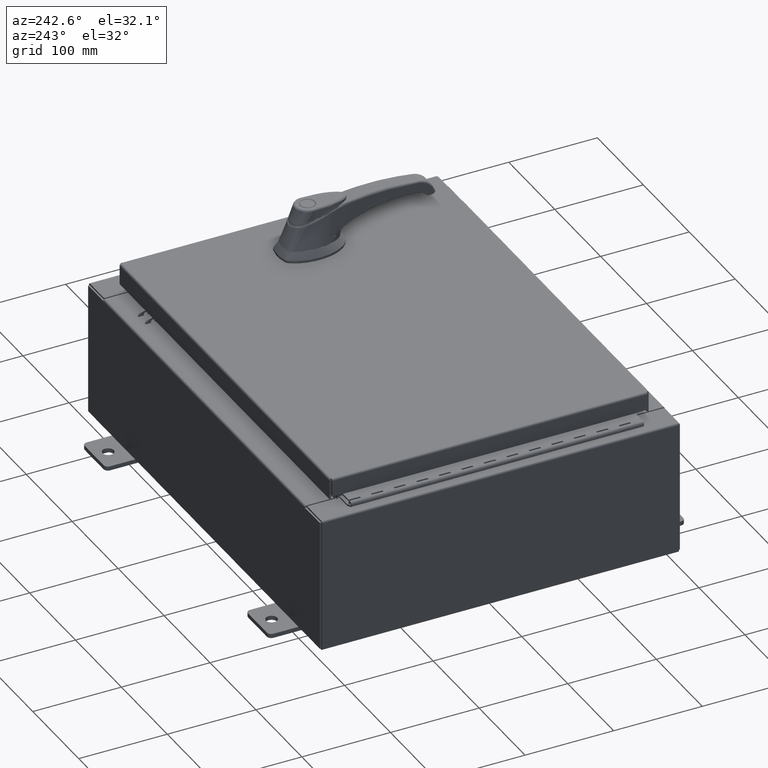
[diagram: clean part render]
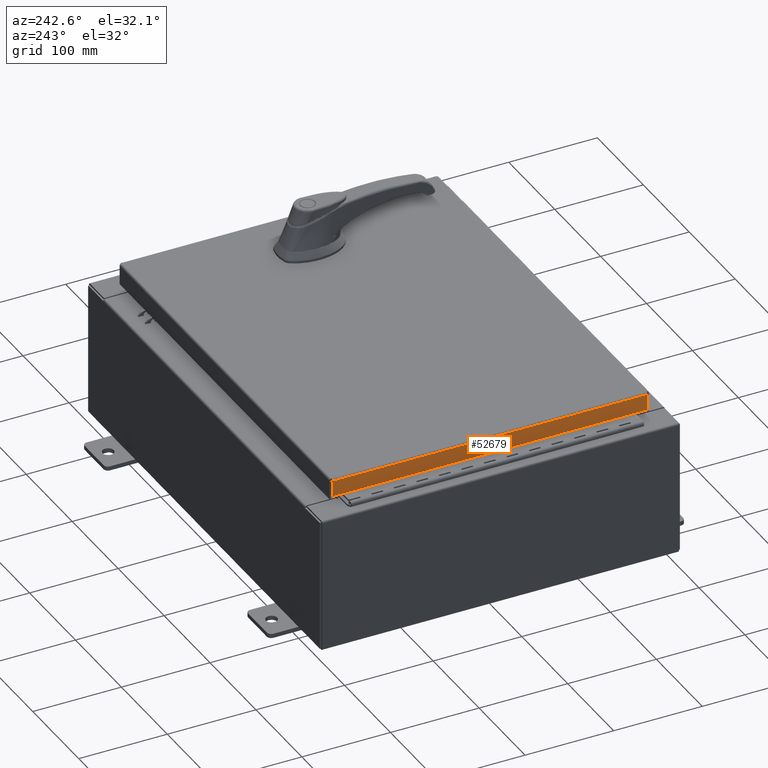
[diagram: same view with one face highlighted and labeled with its STEP entity id]
A machine part, auxiliary view. The second image highlights one B-rep face of the part: STEP entity #52679.
In plain terms, the highlighted planar face has unit normal (1, 0, -0).
Its self-contained STEP definition (entity closure, byte-faithful):
#39 = VERTEX_POINT ( 'NONE', #68498 ) ;
#737 = LINE ( 'NONE', #34136, #85139 ) ;
#4767 = VERTEX_POINT ( 'NONE', #39766 ) ;
#6391 = EDGE_CURVE ( 'NONE', #34725, #28637, #31028, .T. ) ;
#6684 = VECTOR ( 'NONE', #74131, 39.37007874015748100 ) ;
#13155 = CARTESIAN_POINT ( 'NONE',  ( -9.078000000000001200, -7.093999999999999400, -0.7949999999999997100 ) ) ;
#16481 = VECTOR ( 'NONE', #53992, 39.37007874015748100 ) ;
#20382 = ORIENTED_EDGE ( 'NONE', *, *, #6391, .T. ) ;
#23723 = EDGE_CURVE ( 'NONE', #39, #28637, #60026, .T. ) ;
#24617 = PLANE ( 'NONE',  #75813 ) ;
#25104 = CARTESIAN_POINT ( 'NONE',  ( -9.077999999999999400, 7.005157864376270600, 7.672133310220841000E-014 ) ) ;
#27525 = CARTESIAN_POINT ( 'NONE',  ( -9.078000000000001200, 7.005157864376276000, -0.7949999999999979300 ) ) ;
#28637 = VERTEX_POINT ( 'NONE', #27525 ) ;
#29424 = EDGE_CURVE ( 'NONE', #4767, #39, #32503, .T. ) ;
#31028 = LINE ( 'NONE', #25104, #6684 ) ;
#32503 = LINE ( 'NONE', #73982, #95246 ) ;
#32856 = DIRECTION ( 'NONE',  ( 1.000000000000000000, 7.701855070945239800E-017, -3.034122441942816500E-015 ) ) ;
#34136 = CARTESIAN_POINT ( 'NONE',  ( -9.077999999999999400, -7.093999999999999400, -0.08770000000000004200 ) ) ;
#34725 = VERTEX_POINT ( 'NONE', #46354 ) ;
#35338 = DIRECTION ( 'NONE',  ( -3.034122441942816500E-015, 6.982962677686265900E-015, -1.000000000000000000 ) ) ;
#39525 = EDGE_CURVE ( 'NONE', #34725, #4767, #737, .T. ) ;
#39766 = CARTESIAN_POINT ( 'NONE',  ( -9.077999999999999400, -7.005157864376266200, -0.08770000000000061100 ) ) ;
#42021 = ORIENTED_EDGE ( 'NONE', *, *, #23723, .F. ) ;
#46354 = CARTESIAN_POINT ( 'NONE',  ( -9.077999999999999400, 7.005157864376271500, -0.08770000000000113800 ) ) ;
#52679 = ADVANCED_FACE ( 'NONE', ( #79153 ), #24617, .F. ) ;
#53992 = DIRECTION ( 'NONE',  ( -7.701855070945201600E-017, 1.000000000000000000, 1.251551449028595500E-016 ) ) ;
#60026 = LINE ( 'NONE', #13155, #16481 ) ;
#68498 = CARTESIAN_POINT ( 'NONE',  ( -9.078000000000001200, -7.005157864376262600, -0.7949999999999996000 ) ) ;
#73628 = CARTESIAN_POINT ( 'NONE',  ( -9.077999999999999400, -6.991744033404087000E-016, 2.780457718396846700E-014 ) ) ;
#73982 = CARTESIAN_POINT ( 'NONE',  ( -9.077999999999999400, -7.005157864376268900, -0.07469999999999976700 ) ) ;
#74131 = DIRECTION ( 'NONE',  ( -3.034122441942816500E-015, 6.982962677686265900E-015, -1.000000000000000000 ) ) ;
#75813 = AXIS2_PLACEMENT_3D ( 'NONE', #73628, #32856, #90064 ) ;
#79153 = FACE_OUTER_BOUND ( 'NONE', #86491, .T. ) ;
#81465 = ORIENTED_EDGE ( 'NONE', *, *, #39525, .F. ) ;
#85139 = VECTOR ( 'NONE', #99195, 39.37007874015748100 ) ;
#85141 = ORIENTED_EDGE ( 'NONE', *, *, #29424, .F. ) ;
#86491 = EDGE_LOOP ( 'NONE', ( #81465, #20382, #42021, #85141 ) ) ;
#90064 = DIRECTION ( 'NONE',  ( -3.034122441942816500E-015, 0.0000000000000000000, -1.000000000000000000 ) ) ;
#95246 = VECTOR ( 'NONE', #35338, 39.37007874015748100 ) ;
#99195 = DIRECTION ( 'NONE',  ( 7.701855070945263300E-017, -1.000000000000000000, 7.701855070945202900E-017 ) ) ;